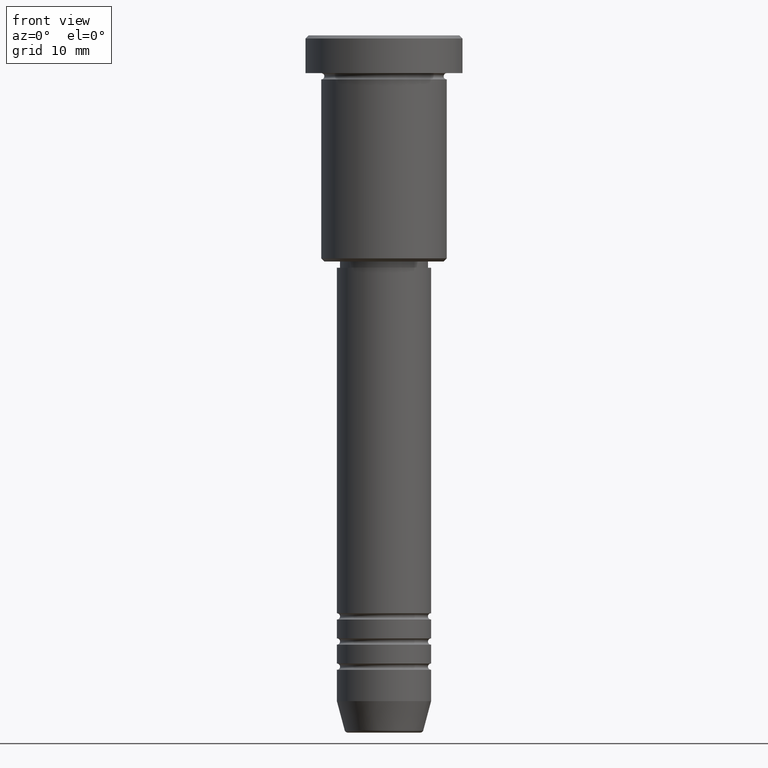
[diagram: clean part render]
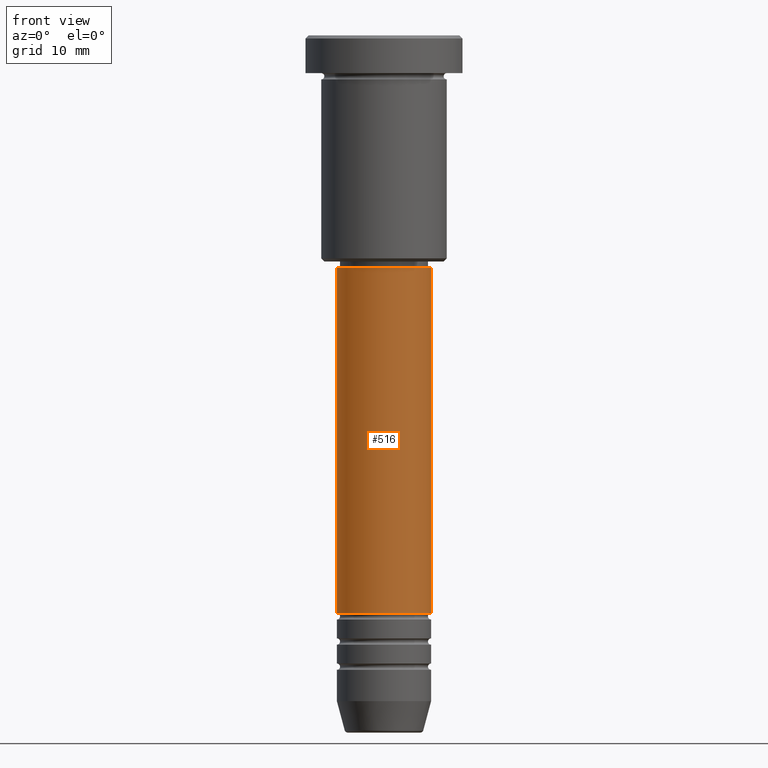
[diagram: same view with one face highlighted and labeled with its STEP entity id]
A machine part, front view. The second image highlights one B-rep face of the part: STEP entity #516.
In plain terms, the highlighted cylindrical surface (partial cylindrical patch) has radius 7.5 mm, axis along (-0, -0, 1).
Its self-contained STEP definition (entity closure, byte-faithful):
#19 = VERTEX_POINT ( 'NONE', #853 ) ;
#28 = VERTEX_POINT ( 'NONE', #838 ) ;
#57 = CYLINDRICAL_SURFACE ( 'NONE', #1169, 7.500000000000000000 ) ;
#59 = CIRCLE ( 'NONE', #704, 7.500000000000000000 ) ;
#145 = CARTESIAN_POINT ( 'NONE',  ( 7.500000000000000000, 0.000000000000000000, 0.000000000000000000 ) ) ;
#148 = ORIENTED_EDGE ( 'NONE', *, *, #197, .T. ) ;
#197 = EDGE_CURVE ( 'NONE', #650, #19, #1048, .T. ) ;
#221 = DIRECTION ( 'NONE',  ( -0.000000000000000000, -0.000000000000000000, 1.000000000000000000 ) ) ;
#226 = DIRECTION ( 'NONE',  ( 1.000000000000000000, 0.000000000000000000, 0.000000000000000000 ) ) ;
#320 = EDGE_LOOP ( 'NONE', ( #818, #1034, #148, #576 ) ) ;
#372 = EDGE_CURVE ( 'NONE', #28, #965, #750, .T. ) ;
#465 = CARTESIAN_POINT ( 'NONE',  ( 0.000000000000000000, 0.000000000000000000, -37.00000000000000000 ) ) ;
#506 = EDGE_CURVE ( 'NONE', #965, #19, #59, .T. ) ;
#516 = ADVANCED_FACE ( 'NONE', ( #791 ), #57, .T. ) ;
#572 = CARTESIAN_POINT ( 'NONE',  ( -7.500000000000000000, 9.184850993605147944E-16, 0.000000000000000000 ) ) ;
#576 = ORIENTED_EDGE ( 'NONE', *, *, #506, .F. ) ;
#583 = DIRECTION ( 'NONE',  ( -0.000000000000000000, -0.000000000000000000, 1.000000000000000000 ) ) ;
#650 = VERTEX_POINT ( 'NONE', #1178 ) ;
#658 = DIRECTION ( 'NONE',  ( -0.000000000000000000, -0.000000000000000000, 1.000000000000000000 ) ) ;
#683 = CARTESIAN_POINT ( 'NONE',  ( 0.000000000000000000, 0.000000000000000000, -91.99999999999988631 ) ) ;
#704 = AXIS2_PLACEMENT_3D ( 'NONE', #465, #844, #226 ) ;
#721 = VECTOR ( 'NONE', #658, 1000.000000000000000 ) ;
#750 = LINE ( 'NONE', #572, #721 ) ;
#766 = AXIS2_PLACEMENT_3D ( 'NONE', #683, #957, #977 ) ;
#791 = FACE_OUTER_BOUND ( 'NONE', #320, .T. ) ;
#803 = CARTESIAN_POINT ( 'NONE',  ( -7.500000000000000000, 9.184850993605147944E-16, -37.00000000000000000 ) ) ;
#818 = ORIENTED_EDGE ( 'NONE', *, *, #372, .F. ) ;
#838 = CARTESIAN_POINT ( 'NONE',  ( -7.500000000000001776, 9.184850993605149917E-16, -91.99999999999988631 ) ) ;
#844 = DIRECTION ( 'NONE',  ( -0.000000000000000000, -0.000000000000000000, 1.000000000000000000 ) ) ;
#853 = CARTESIAN_POINT ( 'NONE',  ( 7.500000000000000000, 0.000000000000000000, -37.00000000000000000 ) ) ;
#868 = CIRCLE ( 'NONE', #766, 7.500000000000000888 ) ;
#926 = VECTOR ( 'NONE', #583, 1000.000000000000000 ) ;
#957 = DIRECTION ( 'NONE',  ( -0.000000000000000000, -0.000000000000000000, 1.000000000000000000 ) ) ;
#965 = VERTEX_POINT ( 'NONE', #803 ) ;
#977 = DIRECTION ( 'NONE',  ( 1.000000000000000000, 0.000000000000000000, 0.000000000000000000 ) ) ;
#1034 = ORIENTED_EDGE ( 'NONE', *, *, #1176, .T. ) ;
#1046 = DIRECTION ( 'NONE',  ( 1.000000000000000000, 0.000000000000000000, 0.000000000000000000 ) ) ;
#1048 = LINE ( 'NONE', #145, #926 ) ;
#1139 = CARTESIAN_POINT ( 'NONE',  ( 0.000000000000000000, 0.000000000000000000, 0.000000000000000000 ) ) ;
#1169 = AXIS2_PLACEMENT_3D ( 'NONE', #1139, #221, #1046 ) ;
#1176 = EDGE_CURVE ( 'NONE', #28, #650, #868, .T. ) ;
#1178 = CARTESIAN_POINT ( 'NONE',  ( 7.500000000000000888, 0.000000000000000000, -91.99999999999988631 ) ) ;